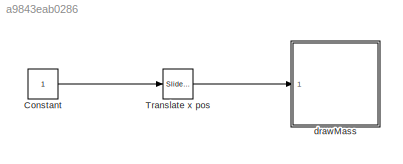
MODEL slx_a9843eab0286
KIND model
CONFIG AbsTol = auto
CONFIG FixedStep = auto
CONFIG MaxStep = auto
CONFIG MinStep = auto
CONFIG RelTol = 1e-3
CONFIG SampleTimeConstraint = Unconstrained
CONFIG Solver = ode45
CONFIG SolverMode = Auto
CONFIG SolverName = ode45
CONFIG StartTime = 0.0
CONFIG StopTime = inf
BLOCK [Constant] Constant
BLOCK [Reference] Translate x pos  REF=simulink/Math
Operations/Slider
Gain
  Ports = [1, 1]
  SourceBlock = simulink/Math\nOperations/Slider\nGain
  SourceType = Slider Gain
  gain = -0.29032
  high = 1
  low = -1
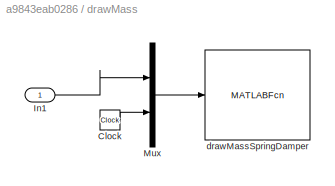
BLOCK [SubSystem] drawMass
  Ports = [1]
  RequestExecContextInheritance = off
BLOCK [Clock] drawMass/Clock
BLOCK [Inport] drawMass/In1
  IconDisplay = Port number
BLOCK [Mux] drawMass/Mux
  DisplayOption = bar
  Inputs = 2
  Ports = [2, 1]
BLOCK [MATLABFcn] drawMass/drawMassSpringDamper
  MATLABFcn = drawMassSpringDamper(u)
  OutputDimensions = 0
  Ports = [1]
LINE Constant:1 -> Translate x pos:1
LINE Translate x pos:1 -> drawMass:1
LINE drawMass/Clock:1 -> drawMass/Mux:2
LINE drawMass/In1:1 -> drawMass/Mux:1
LINE drawMass/Mux:1 -> drawMass/drawMassSpringDamper:1
